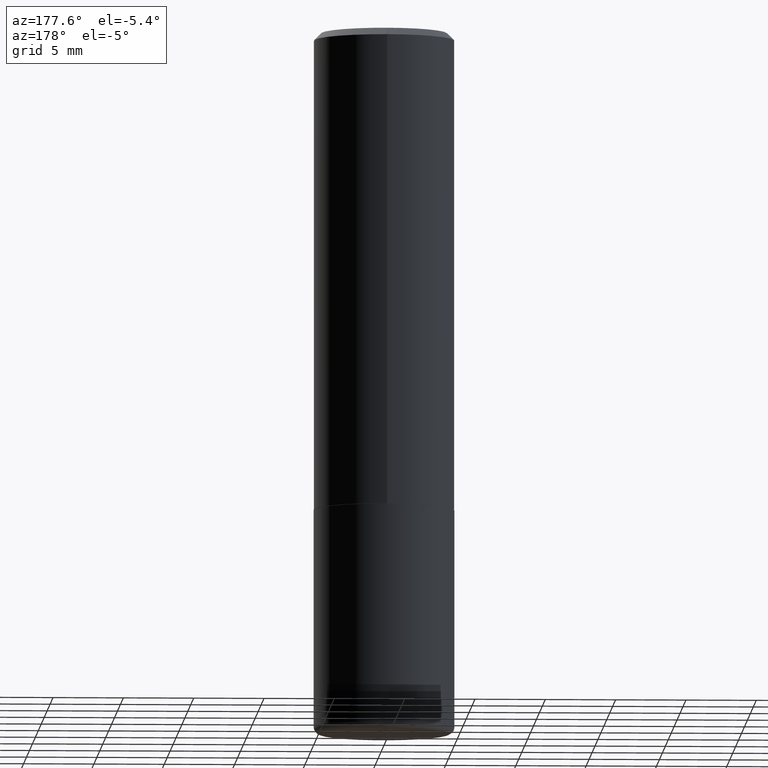
[diagram: clean part render]
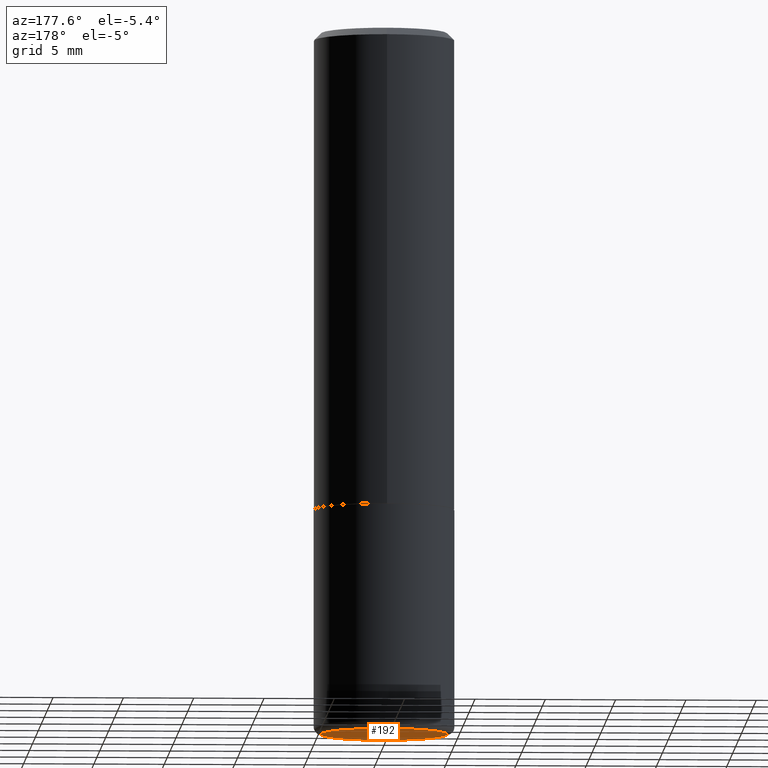
[diagram: same view with one face highlighted and labeled with its STEP entity id]
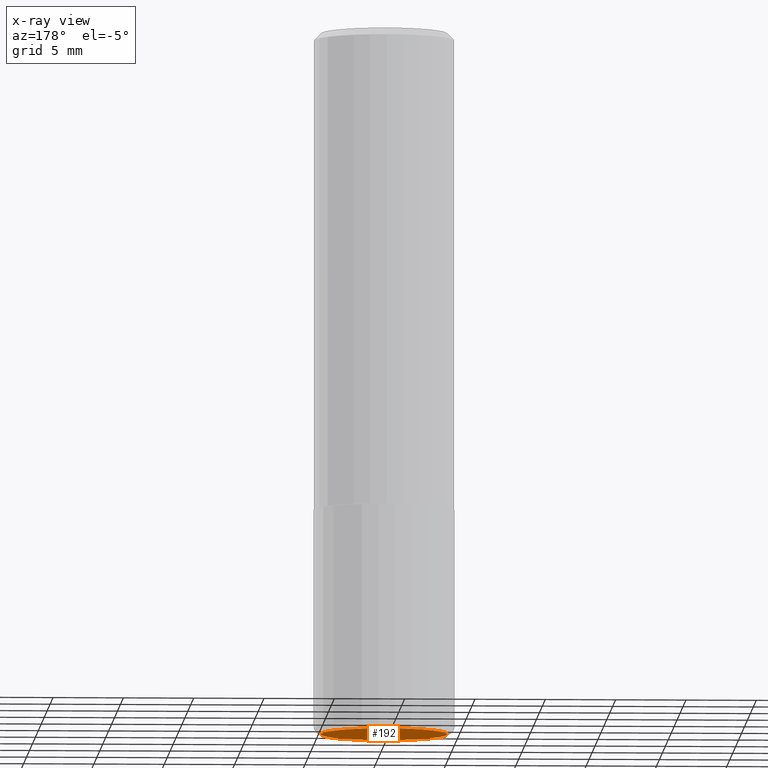
[diagram: x-ray of the same camera — body ghosted, the highlighted face saturated]
A machine part, auxiliary view. The second image highlights one B-rep face of the part: STEP entity #192.
The next image is the same camera in x-ray: the body ghosted, the highlighted face saturated — about 0% of this face is hidden behind the body in this view.
In plain terms, the highlighted planar face has unit normal (0, -0, -1).
Its self-contained STEP definition (entity closure, byte-faithful):
#16 = DIRECTION ( 'NONE',  ( 1.000000000000000000, -6.982962677686268288E-15, 0.000000000000000000 ) ) ;
#32 = CIRCLE ( 'NONE', #81, 0.1771499999999999742 ) ;
#53 = EDGE_CURVE ( 'NONE', #156, #298, #73, .T. ) ;
#61 = DIRECTION ( 'NONE',  ( 2.438088387897960049E-29, -3.491481338843145188E-15, -1.000000000000000000 ) ) ;
#73 = CIRCLE ( 'NONE', #269, 0.1771499999999999742 ) ;
#79 = DIRECTION ( 'NONE',  ( -2.445468806185136597E-29, 3.491481338843145583E-15, 1.000000000000000000 ) ) ;
#81 = AXIS2_PLACEMENT_3D ( 'NONE', #371, #79, #16 ) ;
#94 = DIRECTION ( 'NONE',  ( -1.000000000000000000, 6.982962677686265922E-15, -4.876176775795935793E-29 ) ) ;
#143 = ORIENTED_EDGE ( 'NONE', *, *, #306, .F. ) ;
#156 = VERTEX_POINT ( 'NONE', #261 ) ;
#180 = AXIS2_PLACEMENT_3D ( 'NONE', #341, #61, #94 ) ;
#192 = ADVANCED_FACE ( 'NONE', ( #305 ), #383, .T. ) ;
#261 = CARTESIAN_POINT ( 'NONE',  ( 0.1771499999999999742, -8.110012853864854101E-15, -1.968500000000000139 ) ) ;
#266 = DIRECTION ( 'NONE',  ( -2.445468806185136597E-29, 3.491481338843145583E-15, 1.000000000000000000 ) ) ;
#269 = AXIS2_PLACEMENT_3D ( 'NONE', #361, #266, #366 ) ;
#298 = VERTEX_POINT ( 'NONE', #408 ) ;
#305 = FACE_OUTER_BOUND ( 'NONE', #334, .T. ) ;
#306 = EDGE_CURVE ( 'NONE', #298, #156, #32, .T. ) ;
#307 = ORIENTED_EDGE ( 'NONE', *, *, #53, .F. ) ;
#334 = EDGE_LOOP ( 'NONE', ( #307, #143 ) ) ;
#341 = CARTESIAN_POINT ( 'NONE',  ( 4.813905344975441835E-29, -6.872981015512731707E-15, -1.968500000000000139 ) ) ;
#361 = CARTESIAN_POINT ( 'NONE',  ( 4.813905344975441835E-29, -6.872981015512731707E-15, -1.968500000000000139 ) ) ;
#366 = DIRECTION ( 'NONE',  ( 1.000000000000000000, -6.982962677686268288E-15, 0.000000000000000000 ) ) ;
#371 = CARTESIAN_POINT ( 'NONE',  ( 4.813905344975441835E-29, -6.872981015512731707E-15, -1.968500000000000139 ) ) ;
#383 = PLANE ( 'NONE',  #180 ) ;
#408 = CARTESIAN_POINT ( 'NONE',  ( -0.1771499999999999742, -5.509875008453739165E-15, -1.968500000000000139 ) ) ;